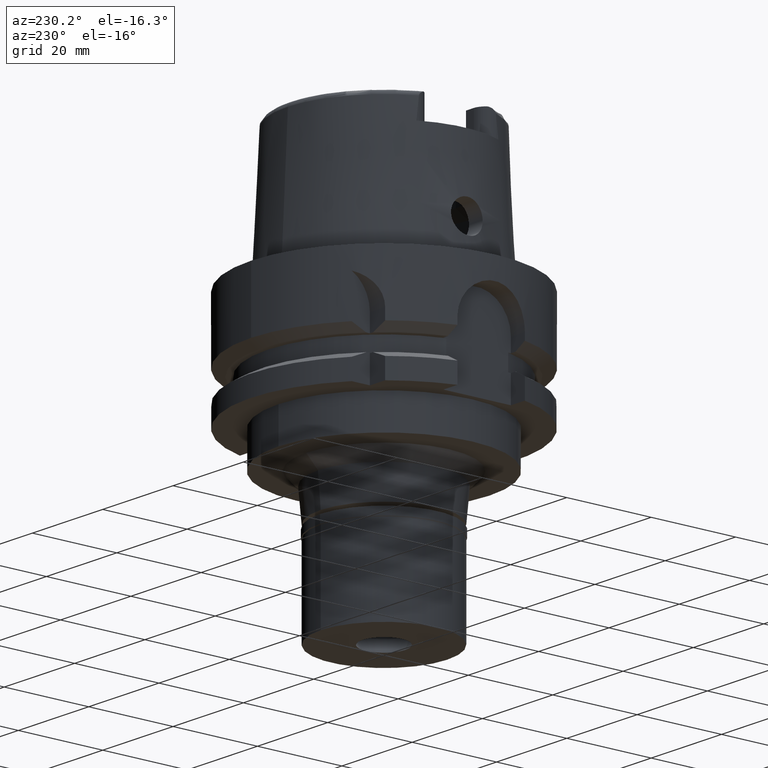
[diagram: clean part render]
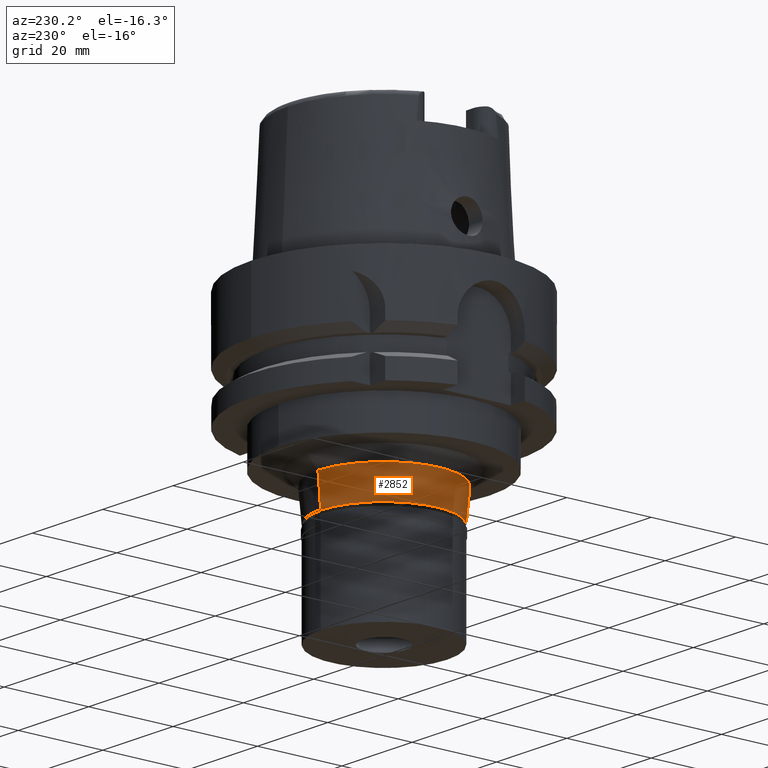
[diagram: same view with one face highlighted and labeled with its STEP entity id]
A machine part, auxiliary view. The second image highlights one B-rep face of the part: STEP entity #2852.
In plain terms, the highlighted conical surface has half-angle 5 deg.
Its self-contained STEP definition (entity closure, byte-faithful):
#104 = VERTEX_POINT ( 'NONE', #2533 ) ;
#163 = CIRCLE ( 'NONE', #4092, 15.00000000000000000 ) ;
#237 = CARTESIAN_POINT ( 'NONE',  ( 0.0000000000000000000, 0.0000000000000000000, -40.50000000000000000 ) ) ;
#245 = DIRECTION ( 'NONE',  ( 0.0000000000000000000, 1.000000000000000000, 0.0000000000000000000 ) ) ;
#433 = CARTESIAN_POINT ( 'NONE',  ( 0.0000000000000000000, -15.00000000000000000, -44.20000000000000284 ) ) ;
#534 = CARTESIAN_POINT ( 'NONE',  ( 0.0000000000000000000, -15.64741611009000088, -36.79999999999999716 ) ) ;
#562 = VECTOR ( 'NONE', #4415, 1000.000000000000000 ) ;
#615 = DIRECTION ( 'NONE',  ( 0.0000000000000000000, 0.0000000000000000000, 1.000000000000000000 ) ) ;
#1239 = AXIS2_PLACEMENT_3D ( 'NONE', #4714, #5499, #2493 ) ;
#1287 = VERTEX_POINT ( 'NONE', #433 ) ;
#1371 = LINE ( 'NONE', #2285, #562 ) ;
#1506 = VECTOR ( 'NONE', #4283, 1000.000000000000000 ) ;
#1545 = DIRECTION ( 'NONE',  ( 0.0000000000000000000, 1.000000000000000000, 0.0000000000000000000 ) ) ;
#1648 = ORIENTED_EDGE ( 'NONE', *, *, #1735, .T. ) ;
#1713 = EDGE_CURVE ( 'NONE', #4160, #1287, #4203, .T. ) ;
#1735 = EDGE_CURVE ( 'NONE', #4160, #2236, #3699, .T. ) ;
#1883 = CARTESIAN_POINT ( 'NONE',  ( 0.0000000000000000000, 0.0000000000000000000, -44.20000000000000284 ) ) ;
#2236 = VERTEX_POINT ( 'NONE', #5545 ) ;
#2285 = CARTESIAN_POINT ( 'NONE',  ( 0.0000000000000000000, 15.64741611009000088, -36.79999999999999716 ) ) ;
#2493 = DIRECTION ( 'NONE',  ( 0.0000000000000000000, -1.000000000000000000, 0.0000000000000000000 ) ) ;
#2533 = CARTESIAN_POINT ( 'NONE',  ( 0.0000000000000000000, 15.00000000000000000, -44.20000000000000284 ) ) ;
#2726 = ORIENTED_EDGE ( 'NONE', *, *, #3192, .T. ) ;
#2852 = ADVANCED_FACE ( 'NONE', ( #4164 ), #4665, .T. ) ;
#3192 = EDGE_CURVE ( 'NONE', #104, #1287, #163, .T. ) ;
#3699 = CIRCLE ( 'NONE', #1239, 15.64741611009000088 ) ;
#3861 = EDGE_CURVE ( 'NONE', #2236, #104, #1371, .T. ) ;
#4092 = AXIS2_PLACEMENT_3D ( 'NONE', #1883, #615, #245 ) ;
#4101 = ORIENTED_EDGE ( 'NONE', *, *, #3861, .T. ) ;
#4160 = VERTEX_POINT ( 'NONE', #534 ) ;
#4164 = FACE_OUTER_BOUND ( 'NONE', #4621, .T. ) ;
#4203 = LINE ( 'NONE', #5135, #1506 ) ;
#4283 = DIRECTION ( 'NONE',  ( 0.0000000000000000000, 0.08715574274743688454, -0.9961946980917648631 ) ) ;
#4415 = DIRECTION ( 'NONE',  ( 0.0000000000000000000, -0.08715574274743688454, -0.9961946980917648631 ) ) ;
#4621 = EDGE_LOOP ( 'NONE', ( #2726, #4751, #1648, #4101 ) ) ;
#4665 = CONICAL_SURFACE ( 'NONE', #5384, 15.32370805505000178, 0.08726646259969973729 ) ;
#4697 = DIRECTION ( 'NONE',  ( 0.0000000000000000000, 0.0000000000000000000, 1.000000000000000000 ) ) ;
#4714 = CARTESIAN_POINT ( 'NONE',  ( 0.0000000000000000000, 0.0000000000000000000, -36.79999999999999716 ) ) ;
#4751 = ORIENTED_EDGE ( 'NONE', *, *, #1713, .F. ) ;
#5135 = CARTESIAN_POINT ( 'NONE',  ( 0.0000000000000000000, -15.64741611009000088, -36.79999999999999716 ) ) ;
#5384 = AXIS2_PLACEMENT_3D ( 'NONE', #237, #4697, #1545 ) ;
#5499 = DIRECTION ( 'NONE',  ( 0.0000000000000000000, 0.0000000000000000000, -1.000000000000000000 ) ) ;
#5545 = CARTESIAN_POINT ( 'NONE',  ( 0.0000000000000000000, 15.64741611009000088, -36.79999999999999716 ) ) ;